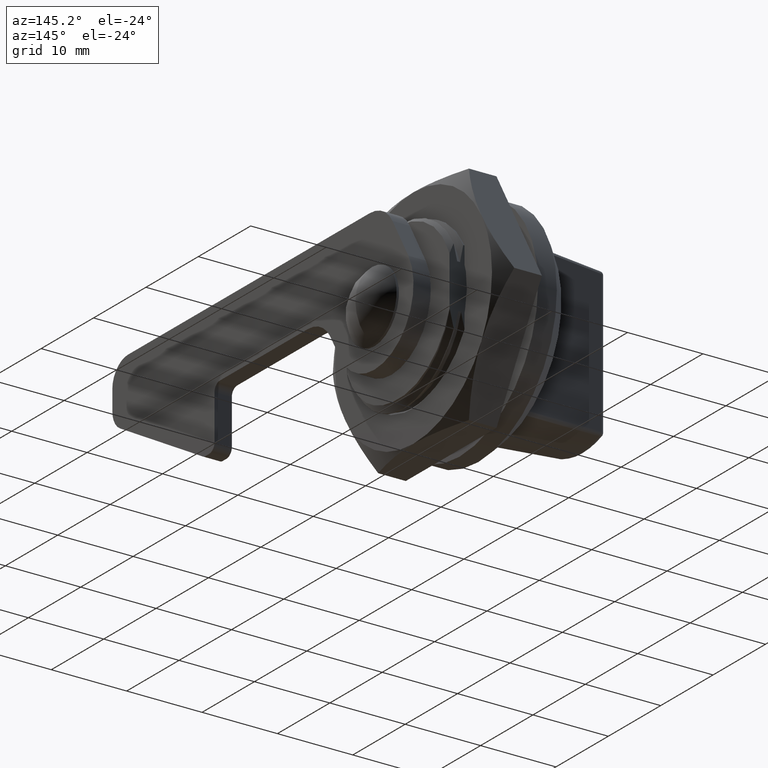
[diagram: clean part render]
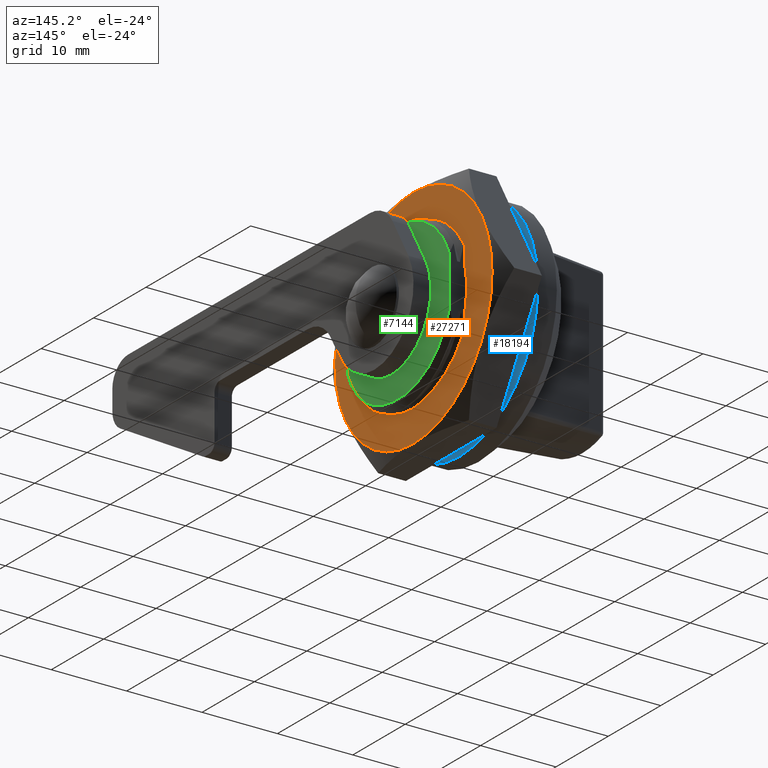
[diagram: same view with three faces highlighted in distinct colors, each labeled with its STEP entity id]
A machine part, auxiliary view with three faces highlighted in distinct colors.
Their STEP definitions:

[orange] entity #27271 — the highlighted planar face has unit normal (-1, 0, 0).
#228 = FACE_OUTER_BOUND ( 'NONE', #22420, .T. ) ;
#397 = CARTESIAN_POINT ( 'NONE',  ( -4.529724541998622700, -4.999999999999998200, 9.459822060423013200 ) ) ;
#491 = CARTESIAN_POINT ( 'NONE',  ( -10.67280194800956700, -5.000000000000003600, 2.071352330506805100 ) ) ;
#509 = VERTEX_POINT ( 'NONE', #19074 ) ;
#522 = B_SPLINE_CURVE_WITH_KNOTS ( 'NONE', 3,
 ( #5980, #8164, #27653, #14693 ),
 .UNSPECIFIED., .F., .F.,
 ( 4, 4 ),
 ( 1.054656235235956700E-016, 0.004421761626893663500 ),
 .UNSPECIFIED. ) ;
#833 = EDGE_CURVE ( 'NONE', #509, #15723, #15325, .T. ) ;
#1534 = CARTESIAN_POINT ( 'NONE',  ( 0.3204096086988811300, -5.000000000000000900, -10.72210813724865900 ) ) ;
#1558 = FACE_BOUND ( 'NONE', #14410, .T. ) ;
#1633 = CARTESIAN_POINT ( 'NONE',  ( 8.557856274789577000, -4.999999999999997300, -5.790185217756810900 ) ) ;
#2122 = VERTEX_POINT ( 'NONE', #7495 ) ;
#2286 = DIRECTION ( 'NONE',  ( -0.0000000000000000000, -1.000000000000000000, -0.0000000000000000000 ) ) ;
#2519 = DIRECTION ( 'NONE',  ( 0.0000000000000000000, 1.000000000000000000, 0.0000000000000000000 ) ) ;
#2590 = CARTESIAN_POINT ( 'NONE',  ( -5.687092063002585200, -5.000000000000000000, 8.876358354759073400 ) ) ;
#2679 = CARTESIAN_POINT ( 'NONE',  ( -10.89355189215758400, -5.000000000000007100, 0.7978947520152160900 ) ) ;
#2928 = VERTEX_POINT ( 'NONE', #24665 ) ;
#3335 = CARTESIAN_POINT ( 'NONE',  ( -9.765044891690349400E-014, -5.000000000000000000, 14.99999999984460100 ) ) ;
#3702 = CARTESIAN_POINT ( 'NONE',  ( 1.602656479458642600, -4.999999999999995600, -10.55869831165239800 ) ) ;
#3794 = CARTESIAN_POINT ( 'NONE',  ( 9.172787568695069300, -5.000000000000002700, -4.651824404657038100 ) ) ;
#4189 = CARTESIAN_POINT ( 'NONE',  ( 0.0000000000000000000, -5.000000000000000000, 0.0000000000000000000 ) ) ;
#4612 = CARTESIAN_POINT ( 'NONE',  ( -9.666904424037920100, -5.000000000000000000, -5.581189911867869400 ) ) ;
#4735 = CARTESIAN_POINT ( 'NONE',  ( -6.771746850444237100, -4.999999999999997300, 8.148317128610893100 ) ) ;
#4823 = CARTESIAN_POINT ( 'NONE',  ( -10.96284637270156100, -4.999999999999999100, -0.5017813460787102800 ) ) ;
#4858 = ORIENTED_EDGE ( 'NONE', *, *, #22361, .T. ) ;
#4974 = CARTESIAN_POINT ( 'NONE',  ( 0.0000000000000000000, -5.000000000000000000, 0.0000000000000000000 ) ) ;
#5040 = ORIENTED_EDGE ( 'NONE', *, *, #26734, .F. ) ;
#5286 = ORIENTED_EDGE ( 'NONE', *, *, #26043, .F. ) ;
#5344 = AXIS2_PLACEMENT_3D ( 'NONE', #9257, #24386, #11429 ) ;
#5605 = VERTEX_POINT ( 'NONE', #4612 ) ;
#5768 = CARTESIAN_POINT ( 'NONE',  ( -6.289393308947480500, -5.000000000000000000, -9.014394201248492800 ) ) ;
#5861 = CARTESIAN_POINT ( 'NONE',  ( 2.869312737065121700, -5.000000000000000000, -10.23438764983597900 ) ) ;
#5961 = CARTESIAN_POINT ( 'NONE',  ( 9.638937201804241200, -5.000000000000006200, -3.441095731973845800 ) ) ;
#5980 = CARTESIAN_POINT ( 'NONE',  ( -10.91372415477802000, -5.000000000000000000, -1.375000026695415900 ) ) ;
#6365 = DIRECTION ( 'NONE',  ( 8.881784197001252300E-016, 0.0000000000000000000, 1.000000000000000000 ) ) ;
#6618 = AXIS2_PLACEMENT_3D ( 'NONE', #4974, #20110, #7149 ) ;
#6701 = AXIS2_PLACEMENT_3D ( 'NONE', #22324, #9393, #24514 ) ;
#6822 = CARTESIAN_POINT ( 'NONE',  ( 0.9872765554697112700, -5.000000000000000900, 10.22112004195336800 ) ) ;
#6918 = CARTESIAN_POINT ( 'NONE',  ( -7.748317254809352400, -5.000000000000000000, 7.301043156370388600 ) ) ;
#7007 = CARTESIAN_POINT ( 'NONE',  ( -10.91372415477802000, -5.000000000000000000, -1.375000026695415900 ) ) ;
#7149 = DIRECTION ( 'NONE',  ( 0.0000000000000000000, 0.0000000000000000000, 1.000000000000000000 ) ) ;
#7372 = ORIENTED_EDGE ( 'NONE', *, *, #20225, .F. ) ;
#7389 = PLANE ( 'NONE',  #9029 ) ;
#7495 = CARTESIAN_POINT ( 'NONE',  ( 12.99038105663197800, -5.000000000000000000, 7.499999999922299500 ) ) ;
#7688 = CARTESIAN_POINT ( 'NONE',  ( -6.647646987011669700, -5.000000000000000000, -8.764062387729389100 ) ) ;
#7963 = CARTESIAN_POINT ( 'NONE',  ( -5.150565388679468400, -5.000000000000000900, -9.651778640270753900 ) ) ;
#8001 = EDGE_CURVE ( 'NONE', #18042, #26306, #13913, .T. ) ;
#8056 = CARTESIAN_POINT ( 'NONE',  ( 4.852672220566260500, -4.999999999999996400, -9.389442033987098300 ) ) ;
#8147 = CARTESIAN_POINT ( 'NONE',  ( 9.854779545596841200, -4.999999999995449900, -2.592184427791759800 ) ) ;
#8164 = CARTESIAN_POINT ( 'NONE',  ( -10.78667158833198800, -5.000000000000000000, -2.843706243014712000 ) ) ;
#8305 = AXIS2_PLACEMENT_3D ( 'NONE', #15232, #2286, #17393 ) ;
#8748 = EDGE_CURVE ( 'NONE', #26245, #26306, #14550, .T. ) ;
#9000 = CARTESIAN_POINT ( 'NONE',  ( -0.7491318615024874500, -4.999999999999996400, 10.33308777078296000 ) ) ;
#9001 = B_SPLINE_CURVE_WITH_KNOTS ( 'NONE', 3,
 ( #20716, #9853, #25071, #12123 ),
 .UNSPECIFIED., .F., .F.,
 ( 4, 4 ),
 ( 8.036095970540328500E-017, 0.004421758462768273800 ),
 .UNSPECIFIED. ) ;
#9029 = AXIS2_PLACEMENT_3D ( 'NONE', #22405, #22496, #9557 ) ;
#9096 = CARTESIAN_POINT ( 'NONE',  ( -8.619407604147705000, -5.000000000000000900, 6.333025607650469600 ) ) ;
#9257 = CARTESIAN_POINT ( 'NONE',  ( 0.0000000000000000000, -5.000000000000000000, 0.0000000000000000000 ) ) ;
#9343 = CARTESIAN_POINT ( 'NONE',  ( 0.0000000000000000000, -5.000000000000000000, 0.0000000000000000000 ) ) ;
#9351 = AXIS2_PLACEMENT_3D ( 'NONE', #4189, #19319, #6365 ) ;
#9393 = DIRECTION ( 'NONE',  ( 0.0000000000000000000, 1.000000000000000000, 0.0000000000000000000 ) ) ;
#9557 = DIRECTION ( 'NONE',  ( 0.0000000000000000000, 0.0000000000000000000, 1.000000000000000000 ) ) ;
#9853 = CARTESIAN_POINT ( 'NONE',  ( -8.887358922856515500, -5.000000000000000000, -6.832407374676039400 ) ) ;
#10133 = CARTESIAN_POINT ( 'NONE',  ( -3.538098540741268800, -4.999999999999999100, -10.30691911433999100 ) ) ;
#10223 = CARTESIAN_POINT ( 'NONE',  ( 6.275943887850023600, -4.999999999999999100, -8.380862123255395700 ) ) ;
#10696 = CARTESIAN_POINT ( 'NONE',  ( -10.91372415477802000, -5.000000000000000000, -1.375000026695415900 ) ) ;
#11169 = EDGE_CURVE ( 'NONE', #25881, #2928, #16821, .T. ) ;
#11174 = CARTESIAN_POINT ( 'NONE',  ( -2.887396043328178700, -4.999999999999998200, 10.00964325858394600 ) ) ;
#11261 = CARTESIAN_POINT ( 'NONE',  ( -9.805157073379851000, -5.000000000000001800, 4.524716647803884100 ) ) ;
#11429 = DIRECTION ( 'NONE',  ( 1.776356839400250500E-015, 0.0000000000000000000, 1.000000000000000000 ) ) ;
#11511 = DIRECTION ( 'NONE',  ( 0.0000000000000000000, 0.0000000000000000000, 1.000000000000000000 ) ) ;
#11880 = EDGE_CURVE ( 'NONE', #15723, #18220, #19171, .T. ) ;
#11934 = CIRCLE ( 'NONE', #9351, 14.99999999984458100 ) ;
#12123 = CARTESIAN_POINT ( 'NONE',  ( -6.647646987011669700, -5.000000000000000000, -8.764062387729389100 ) ) ;
#12308 = CARTESIAN_POINT ( 'NONE',  ( -1.414320372416033400, -4.999999999999995600, -10.69588938915782200 ) ) ;
#12404 = CARTESIAN_POINT ( 'NONE',  ( 7.226782964558676500, -4.999999999999993800, -7.503261956684021100 ) ) ;
#12444 = AXIS2_PLACEMENT_3D ( 'NONE', #15462, #2519, #17617 ) ;
#13258 = CARTESIAN_POINT ( 'NONE',  ( 2.682492182260685100, -5.000000000000000000, 9.830581655873318800 ) ) ;
#13349 = CARTESIAN_POINT ( 'NONE',  ( -4.130265647580450200, -5.000000000000000900, 9.621697935946748700 ) ) ;
#13443 = CARTESIAN_POINT ( 'NONE',  ( -10.44157008223177900, -5.000000000000004400, 2.905771480749146800 ) ) ;
#13913 = CIRCLE ( 'NONE', #6701, 10.19000000000000000 ) ;
#14410 = EDGE_LOOP ( 'NONE', ( #18117, #27147, #26183, #5286, #7372 ) ) ;
#14491 = CARTESIAN_POINT ( 'NONE',  ( -0.1102707083155850100, -4.999999999999989300, -10.74123442100537500 ) ) ;
#14550 = B_SPLINE_CURVE_WITH_KNOTS ( 'NONE', 3,
 ( #27355, #5768, #20914, #7963, #23068, #10133, #25265, #12308, #27436, #14491, #1534, #16661, #3702, #18837, #5861, #21000, #8056, #23162, #10223, #25355, #12404, #27536, #14578, #1633, #16757, #3794, #18928, #5961, #21096, #8147 ),
 .UNSPECIFIED., .F., .F.,
 ( 4, 2, 2, 2, 2, 2, 2, 2, 2, 2, 2, 2, 2, 2, 4 ),
 ( 5.434005713344057700E-017, 0.001305055688224699500, 0.002610111376449344400, 0.005220222752898635000, 0.006525278441123279200, 0.007830334129347924300, 0.009135389817572569400, 0.01044044550579721400, 0.01305055688224650300, 0.01435561257047115000, 0.01566066825869579300, 0.01696572394692043300, 0.01827077963514507600, 0.01957583532336971300, 0.02088089101159435300 ),
 .UNSPECIFIED. ) ;
#14578 = CARTESIAN_POINT ( 'NONE',  ( 8.067051736108254500, -4.999999999999999100, -6.509766569931755100 ) ) ;
#14693 = CARTESIAN_POINT ( 'NONE',  ( -9.666904424037920100, -5.000000000000000000, -5.581189911867869400 ) ) ;
#14717 = B_SPLINE_CURVE_WITH_KNOTS ( 'NONE', 3,
 ( #13258, #26219, #19779, #6822, #21948, #9000, #24126, #11174, #26311, #13349, #397, #15530, #2590, #17690, #4735, #19877, #6918, #22031, #9096, #24220, #11261, #26399, #13443, #491, #15615, #2679, #17780, #4823, #19970, #7007 ),
 .UNSPECIFIED., .F., .F.,
 ( 4, 2, 2, 2, 2, 2, 2, 2, 2, 2, 2, 2, 2, 2, 4 ),
 ( 4.596912361788801400E-005, 0.001350443569155663400, 0.002654918014693438800, 0.005263866905768990100, 0.006568341351306765900, 0.007872815796844541800, 0.009177290242382316700, 0.01048176468792009200, 0.01178623913345786700, 0.01309071357899564300, 0.01569966247007119000, 0.01700413691560896700, 0.01830861136114674300, 0.01961308580668451700, 0.02091756025222229000 ),
 .UNSPECIFIED. ) ;
#15232 = CARTESIAN_POINT ( 'NONE',  ( 0.0000000000000000000, -5.000000000000000000, 0.0000000000000000000 ) ) ;
#15325 = CIRCLE ( 'NONE', #5344, 14.99999999984458100 ) ;
#15462 = CARTESIAN_POINT ( 'NONE',  ( 0.0000000000000000000, -5.000000000000000000, 0.0000000000000000000 ) ) ;
#15530 = CARTESIAN_POINT ( 'NONE',  ( -5.307977201119404000, -4.999999999999998200, 9.087251415557743100 ) ) ;
#15615 = CARTESIAN_POINT ( 'NONE',  ( -10.76305664415665900, -5.000000000000006200, 1.649752460926788400 ) ) ;
#15723 = VERTEX_POINT ( 'NONE', #20902 ) ;
#16288 = CARTESIAN_POINT ( 'NONE',  ( 9.854779545596841200, -4.999999999995449900, -2.592184427791759800 ) ) ;
#16661 = CARTESIAN_POINT ( 'NONE',  ( 1.176857826528975700, -5.000000000000000000, -10.63067362096821700 ) ) ;
#16757 = CARTESIAN_POINT ( 'NONE',  ( 8.778916920157769300, -5.000000000000000000, -5.418554700547577600 ) ) ;
#16821 = CIRCLE ( 'NONE', #8305, 14.99999999984458100 ) ;
#17393 = DIRECTION ( 'NONE',  ( 0.0000000000000000000, 0.0000000000000000000, 1.000000000000000000 ) ) ;
#17407 = CIRCLE ( 'NONE', #6618, 14.99999999984458100 ) ;
#17617 = DIRECTION ( 'NONE',  ( 0.0000000000000000000, 0.0000000000000000000, 1.000000000000000000 ) ) ;
#17690 = CARTESIAN_POINT ( 'NONE',  ( -6.422518212492810200, -5.000000000000000000, 8.404591546600812500 ) ) ;
#17780 = CARTESIAN_POINT ( 'NONE',  ( -10.93379493164639600, -4.999999999999999100, 0.3676373433193436100 ) ) ;
#17781 = VERTEX_POINT ( 'NONE', #10696 ) ;
#17824 = ORIENTED_EDGE ( 'NONE', *, *, #19305, .T. ) ;
#18024 = EDGE_CURVE ( 'NONE', #18042, #17781, #14717, .T. ) ;
#18042 = VERTEX_POINT ( 'NONE', #26483 ) ;
#18117 = ORIENTED_EDGE ( 'NONE', *, *, #18024, .F. ) ;
#18220 = VERTEX_POINT ( 'NONE', #26579 ) ;
#18837 = CARTESIAN_POINT ( 'NONE',  ( 2.449263051062681400, -4.999999999999993800, -10.36071787088453400 ) ) ;
#18928 = CARTESIAN_POINT ( 'NONE',  ( 9.344957942948045800, -5.000000000000006200, -4.256413508494223800 ) ) ;
#19074 = CARTESIAN_POINT ( 'NONE',  ( -12.99038105663201900, -5.000000000000000000, -7.499999999922219600 ) ) ;
#19171 = CIRCLE ( 'NONE', #22781, 14.99999999984458100 ) ;
#19305 = EDGE_CURVE ( 'NONE', #2928, #509, #17407, .T. ) ;
#19319 = DIRECTION ( 'NONE',  ( -0.0000000000000000000, -1.000000000000000000, -0.0000000000000000000 ) ) ;
#19779 = CARTESIAN_POINT ( 'NONE',  ( 1.843587548614458800, -5.000000000000000900, 10.06724437853415400 ) ) ;
#19877 = CARTESIAN_POINT ( 'NONE',  ( -7.434648564287187800, -4.999999999999996400, 7.596545352344830500 ) ) ;
#19970 = CARTESIAN_POINT ( 'NONE',  ( -10.95137420624734800, -4.999999999999998200, -0.9397717886165578600 ) ) ;
#20110 = DIRECTION ( 'NONE',  ( -0.0000000000000000000, -1.000000000000000000, -0.0000000000000000000 ) ) ;
#20225 = EDGE_CURVE ( 'NONE', #17781, #5605, #522, .T. ) ;
#20716 = CARTESIAN_POINT ( 'NONE',  ( -9.666904424037920100, -5.000000000000000000, -5.581189911867869400 ) ) ;
#20765 = ORIENTED_EDGE ( 'NONE', *, *, #11169, .T. ) ;
#20902 = CARTESIAN_POINT ( 'NONE',  ( 0.0000000000000000000, -5.000000000000000000, -14.99999999984460100 ) ) ;
#20914 = CARTESIAN_POINT ( 'NONE',  ( -5.918259123207601400, -5.000000000000000900, -9.241884770765413000 ) ) ;
#21000 = CARTESIAN_POINT ( 'NONE',  ( 4.086199617792537700, -4.999999999999999100, -9.784762768436820600 ) ) ;
#21096 = CARTESIAN_POINT ( 'NONE',  ( 9.760954598865389200, -5.000000000000002700, -3.019498928660155500 ) ) ;
#21948 = CARTESIAN_POINT ( 'NONE',  ( 0.5509005036531096100, -4.999999999999996400, 10.27053448166372400 ) ) ;
#22031 = CARTESIAN_POINT ( 'NONE',  ( -8.339841270712954100, -4.999999999999997300, 6.670531429958162000 ) ) ;
#22324 = CARTESIAN_POINT ( 'NONE',  ( 0.0000000000000000000, -4.999999999995449900, 0.0000000000000000000 ) ) ;
#22361 = EDGE_CURVE ( 'NONE', #18220, #2122, #11934, .T. ) ;
#22405 = CARTESIAN_POINT ( 'NONE',  ( 0.0000000000000000000, -5.000000000000000000, 0.0000000000000000000 ) ) ;
#22420 = EDGE_LOOP ( 'NONE', ( #5040, #20765, #17824, #24189, #24596, #4858 ) ) ;
#22496 = DIRECTION ( 'NONE',  ( 0.0000000000000000000, 1.000000000000000000, 0.0000000000000000000 ) ) ;
#22781 = AXIS2_PLACEMENT_3D ( 'NONE', #9343, #24468, #11511 ) ;
#23068 = CARTESIAN_POINT ( 'NONE',  ( -4.751847506375965800, -4.999999999999999100, -9.834890410719964400 ) ) ;
#23162 = CARTESIAN_POINT ( 'NONE',  ( 5.933202804801651600, -4.999999999999998200, -8.648836026409112400 ) ) ;
#24126 = CARTESIAN_POINT ( 'NONE',  ( -1.608695768567571300, -4.999999999999999100, 10.26771121295459100 ) ) ;
#24189 = ORIENTED_EDGE ( 'NONE', *, *, #833, .T. ) ;
#24220 = CARTESIAN_POINT ( 'NONE',  ( -9.387070100990213100, -5.000000000000001800, 5.278776332791164100 ) ) ;
#24386 = DIRECTION ( 'NONE',  ( -0.0000000000000000000, -1.000000000000000000, -0.0000000000000000000 ) ) ;
#24468 = DIRECTION ( 'NONE',  ( -0.0000000000000000000, -1.000000000000000000, -0.0000000000000000000 ) ) ;
#24514 = DIRECTION ( 'NONE',  ( 0.0000000000000000000, 0.0000000000000000000, 1.000000000000000000 ) ) ;
#24596 = ORIENTED_EDGE ( 'NONE', *, *, #11880, .T. ) ;
#24665 = CARTESIAN_POINT ( 'NONE',  ( -12.99038105663200000, -5.000000000000000000, 7.499999999922290600 ) ) ;
#25071 = CARTESIAN_POINT ( 'NONE',  ( -7.856057407233602200, -5.000000000000000000, -7.919678671687544900 ) ) ;
#25265 = CARTESIAN_POINT ( 'NONE',  ( -2.703687009923020600, -4.999999999999996400, -10.52205155327999900 ) ) ;
#25355 = CARTESIAN_POINT ( 'NONE',  ( 6.922260182655265700, -4.999999999999999100, -7.808401426838557300 ) ) ;
#25881 = VERTEX_POINT ( 'NONE', #3335 ) ;
#26043 = EDGE_CURVE ( 'NONE', #5605, #26245, #9001, .T. ) ;
#26183 = ORIENTED_EDGE ( 'NONE', *, *, #8748, .F. ) ;
#26219 = CARTESIAN_POINT ( 'NONE',  ( 2.265968095758975400, -4.999999999999999100, 9.962840086623973700 ) ) ;
#26245 = VERTEX_POINT ( 'NONE', #7688 ) ;
#26306 = VERTEX_POINT ( 'NONE', #16288 ) ;
#26311 = CARTESIAN_POINT ( 'NONE',  ( -3.310564338449126300, -5.000000000000002700, 9.896351109613478400 ) ) ;
#26399 = CARTESIAN_POINT ( 'NONE',  ( -10.29941504282285100, -5.000000000000000900, 3.320974963856185600 ) ) ;
#26483 = CARTESIAN_POINT ( 'NONE',  ( 2.682492182260685100, -5.000000000000000000, 9.830581655873318800 ) ) ;
#26579 = CARTESIAN_POINT ( 'NONE',  ( 12.99038105663201900, -5.000000000000000000, -7.499999999922209800 ) ) ;
#26625 = CIRCLE ( 'NONE', #12444, 14.99999999984460100 ) ;
#26734 = EDGE_CURVE ( 'NONE', #25881, #2122, #26625, .T. ) ;
#27147 = ORIENTED_EDGE ( 'NONE', *, *, #8001, .T. ) ;
#27271 = ADVANCED_FACE ( 'NONE', ( #228, #1558 ), #7389, .F. ) ;
#27355 = CARTESIAN_POINT ( 'NONE',  ( -6.647646987011669700, -5.000000000000000000, -8.764062387729389100 ) ) ;
#27436 = CARTESIAN_POINT ( 'NONE',  ( -0.9763425491826662700, -4.999999999999987600, -10.72848333765721000 ) ) ;
#27536 = CARTESIAN_POINT ( 'NONE',  ( 7.798446571042400200, -4.999999999999993800, -6.855051912225538200 ) ) ;
#27653 = CARTESIAN_POINT ( 'NONE',  ( -10.36071793622376100, -5.000000000000000000, -4.280474703494713000 ) ) ;

[blue] entity #18194 — the highlighted planar face has unit normal (1, 0, 0).
#305 = CARTESIAN_POINT ( 'NONE',  ( 4.499999999999884500, 0.0000000000000000000, 0.0000000000000000000 ) ) ;
#661 = AXIS2_PLACEMENT_3D ( 'NONE', #11210, #26350, #13391 ) ;
#670 = DIRECTION ( 'NONE',  ( 0.0000000000000000000, 0.0000000000000000000, -1.000000000000000000 ) ) ;
#777 = CARTESIAN_POINT ( 'NONE',  ( 4.499999999999892500, 3.961555485014918200, 9.796348959050423100 ) ) ;
#834 = VERTEX_POINT ( 'NONE', #20038 ) ;
#868 = CARTESIAN_POINT ( 'NONE',  ( 4.500000000007279500, 9.750000000000000000, 4.784718670937349900 ) ) ;
#1195 = VERTEX_POINT ( 'NONE', #20387 ) ;
#1270 = CIRCLE ( 'NONE', #2732, 10.18799999999999900 ) ;
#1345 = AXIS2_PLACEMENT_3D ( 'NONE', #305, #13616, #670 ) ;
#1357 = B_SPLINE_CURVE_WITH_KNOTS ( 'NONE', 3,
 ( #1735, #23364, #10435, #25557, #12605, #27740, #14786, #1836, #16959, #3997, #19124, #6161, #21300, #8352, #23461, #10523, #25657, #12699, #27833, #14879, #1937, #17055, #4084, #19222, #6267, #21392, #8450, #23568 ),
 .UNSPECIFIED., .F., .F.,
 ( 4, 2, 2, 2, 2, 2, 2, 2, 2, 2, 2, 2, 2, 4 ),
 ( 4.465220011294948300E-016, 0.001309852335251322400, 0.002619704670502196800, 0.005239409341003946000, 0.006549261676254819300, 0.007859114011505692600, 0.009168966346756568500, 0.01047881868200744400, 0.01309852335250919600, 0.01571822802301095200, 0.01702808035826182400, 0.01833793269351269600, 0.01964778502876356900, 0.02095763736401444500 ),
 .UNSPECIFIED. ) ;
#1735 = CARTESIAN_POINT ( 'NONE',  ( 4.499999999999894300, 8.680732118562771000, -6.756100198030179800 ) ) ;
#1836 = CARTESIAN_POINT ( 'NONE',  ( 4.499999999999891600, 4.109525700276959600, -9.987725040434842300 ) ) ;
#1937 = CARTESIAN_POINT ( 'NONE',  ( 4.499999999999891600, -6.167839787955616200, -8.343390756287661200 ) ) ;
#2169 = DIRECTION ( 'NONE',  ( 0.0000000000000000000, 0.0000000000000000000, -1.000000000000000000 ) ) ;
#2631 = ORIENTED_EDGE ( 'NONE', *, *, #22048, .F. ) ;
#2732 = AXIS2_PLACEMENT_3D ( 'NONE', #15715, #2769, #17884 ) ;
#2769 = DIRECTION ( 'NONE',  ( -1.000000000000000000, 0.0000000000000000000, 0.0000000000000000000 ) ) ;
#2861 = VERTEX_POINT ( 'NONE', #26750 ) ;
#2964 = CARTESIAN_POINT ( 'NONE',  ( 4.499999999999897000, 4.945995908677231200, 9.382741679684624400 ) ) ;
#3222 = DIRECTION ( 'NONE',  ( -1.000000000000000000, 0.0000000000000000000, 0.0000000000000000000 ) ) ;
#3651 = EDGE_CURVE ( 'NONE', #19827, #834, #10239, .T. ) ;
#3997 = CARTESIAN_POINT ( 'NONE',  ( 4.499999999999893400, 2.854544362428820500, -10.36442339495922800 ) ) ;
#4084 = CARTESIAN_POINT ( 'NONE',  ( 4.499999999999893400, -7.134227981602077900, -7.462529002341335100 ) ) ;
#4475 = CARTESIAN_POINT ( 'NONE',  ( 4.499999999999894300, -4.954724057564140700, 8.902025247852030500 ) ) ;
#4599 = ORIENTED_EDGE ( 'NONE', *, *, #10229, .T. ) ;
#4894 = FACE_BOUND ( 'NONE', #5857, .T. ) ;
#5029 = CARTESIAN_POINT ( 'NONE',  ( 4.499999999999889900, -2.340148781256364200, 10.05653861871135600 ) ) ;
#5111 = CARTESIAN_POINT ( 'NONE',  ( 4.499999999999877400, 5.878484213599550800, 8.873900084461467900 ) ) ;
#5464 = CARTESIAN_POINT ( 'NONE',  ( 4.499999999999884500, -9.750000000000000000, -11.39901311517800100 ) ) ;
#5857 = EDGE_LOOP ( 'NONE', ( #18065, #8685, #7108, #21193, #7883, #4599, #18674 ) ) ;
#6161 = CARTESIAN_POINT ( 'NONE',  ( 4.499999999999887200, 1.575950035344837900, -10.58233596821344600 ) ) ;
#6267 = CARTESIAN_POINT ( 'NONE',  ( 4.499999999999891600, -7.974196775119353700, -6.473452289030955600 ) ) ;
#7108 = ORIENTED_EDGE ( 'NONE', *, *, #3651, .F. ) ;
#7118 = CARTESIAN_POINT ( 'NONE',  ( 4.499999999999894300, -4.954724057564140700, 8.902025247852030500 ) ) ;
#7126 = CARTESIAN_POINT ( 'NONE',  ( 4.499999999999884500, 9.750000000000000000, -11.39901311517800100 ) ) ;
#7206 = VERTEX_POINT ( 'NONE', #23571 ) ;
#7208 = CARTESIAN_POINT ( 'NONE',  ( 4.499999999999893400, -0.5969526954591044500, 10.36254656329514700 ) ) ;
#7301 = CARTESIAN_POINT ( 'NONE',  ( 4.499999999999892500, 6.761997540852647100, 8.272098816481001600 ) ) ;
#7551 = AXIS2_PLACEMENT_3D ( 'NONE', #16175, #3222, #18339 ) ;
#7561 = VERTEX_POINT ( 'NONE', #4475 ) ;
#7654 = DIRECTION ( 'NONE',  ( 0.0000000000000000000, 0.0000000000000000000, 1.000000000000000000 ) ) ;
#7791 = CARTESIAN_POINT ( 'NONE',  ( 4.499999999999894300, 8.680732118562771000, -6.756100198030179800 ) ) ;
#7883 = ORIENTED_EDGE ( 'NONE', *, *, #9903, .T. ) ;
#8352 = CARTESIAN_POINT ( 'NONE',  ( 4.499999999999892500, 0.2714307250845591200, -10.64300429828133000 ) ) ;
#8450 = CARTESIAN_POINT ( 'NONE',  ( 4.499999999999895200, -8.688039041590782200, -5.374576571644092300 ) ) ;
#8596 = CARTESIAN_POINT ( 'NONE',  ( 4.499999999999840100, 0.0000000000000000000, 0.0000000000000000000 ) ) ;
#8685 = ORIENTED_EDGE ( 'NONE', *, *, #21597, .F. ) ;
#8945 = VERTEX_POINT ( 'NONE', #23447 ) ;
#9390 = CARTESIAN_POINT ( 'NONE',  ( 4.499999999999892500, 0.4721448765926090100, 10.41365883758212800 ) ) ;
#9476 = CARTESIAN_POINT ( 'NONE',  ( 4.499999999999895200, 8.100453150038463300, 7.098318654524365300 ) ) ;
#9903 = EDGE_CURVE ( 'NONE', #25101, #2861, #1270, .T. ) ;
#10053 = LINE ( 'NONE', #5464, #20875 ) ;
#10079 = VERTEX_POINT ( 'NONE', #24403 ) ;
#10229 = EDGE_CURVE ( 'NONE', #2861, #10079, #10053, .T. ) ;
#10239 = CIRCLE ( 'NONE', #15372, 11.00000000000319900 ) ;
#10251 = VECTOR ( 'NONE', #22246, 1000.000000000000000 ) ;
#10435 = CARTESIAN_POINT ( 'NONE',  ( 4.499999999999893400, 8.097093971413613600, -7.408178467541177700 ) ) ;
#10523 = CARTESIAN_POINT ( 'NONE',  ( 4.499999999999893400, -1.464325470735440500, -10.50049258379318900 ) ) ;
#10778 = DIRECTION ( 'NONE',  ( 0.0000000000000000000, 0.0000000000000000000, -1.000000000000000000 ) ) ;
#10952 = LINE ( 'NONE', #7126, #10251 ) ;
#11210 = CARTESIAN_POINT ( 'NONE',  ( 4.499999999999840100, 0.0000000000000000000, 0.0000000000000000000 ) ) ;
#11551 = CARTESIAN_POINT ( 'NONE',  ( 4.499999999999892500, 1.895208791477005900, 10.32861095472894800 ) ) ;
#11644 = CARTESIAN_POINT ( 'NONE',  ( 4.499999999999893400, 8.993904353933889000, 5.996485873000407800 ) ) ;
#11905 = CIRCLE ( 'NONE', #19886, 15.00000000000000000 ) ;
#12605 = CARTESIAN_POINT ( 'NONE',  ( 4.499999999999894300, 7.120094027006912200, -8.285783419002593000 ) ) ;
#12671 = ORIENTED_EDGE ( 'NONE', *, *, #24571, .F. ) ;
#12699 = CARTESIAN_POINT ( 'NONE',  ( 4.499999999999893400, -3.961943102239120500, -9.723016321020423900 ) ) ;
#13002 = B_SPLINE_CURVE_WITH_KNOTS ( 'NONE', 3,
 ( #7118, #19992, #17978, #5029, #20158, #7208, #22321, #9390, #24512, #11551, #26694, #13733, #777, #15908, #2964, #18076, #5111, #20254, #7301, #22411, #9476, #24606, #11644, #26777, #13825, #868 ),
 .UNSPECIFIED., .F., .F.,
 ( 4, 2, 2, 2, 2, 2, 2, 2, 2, 2, 2, 2, 4 ),
 ( 1.924214207952030700E-016, 0.002143297280593170000, 0.004286594561186147400, 0.005358243201482634800, 0.006429891841779122200, 0.008573189122372098700, 0.009644837762668584400, 0.01071648640296507200, 0.01178813504326155700, 0.01285978368355804500, 0.01500308096415102800, 0.01607472960444751600, 0.01714637824474400700 ),
 .UNSPECIFIED. ) ;
#13391 = DIRECTION ( 'NONE',  ( 0.0000000000000000000, 0.0000000000000000000, -1.000000000000000000 ) ) ;
#13616 = DIRECTION ( 'NONE',  ( 1.000000000000000000, 0.0000000000000000000, 0.0000000000000000000 ) ) ;
#13706 = EDGE_LOOP ( 'NONE', ( #12671, #2631 ) ) ;
#13733 = CARTESIAN_POINT ( 'NONE',  ( 4.499999999999898700, 3.620308976941920300, 9.912833224091459200 ) ) ;
#13825 = CARTESIAN_POINT ( 'NONE',  ( 4.499999999999894300, 9.581001243385699700, 5.097053555273810800 ) ) ;
#14424 = EDGE_CURVE ( 'NONE', #7561, #1195, #13002, .T. ) ;
#14786 = CARTESIAN_POINT ( 'NONE',  ( 4.499999999999891600, 5.314918006423081200, -9.486272667716283600 ) ) ;
#14879 = CARTESIAN_POINT ( 'NONE',  ( 4.499999999999897000, -5.818733518513819400, -8.610408834768684000 ) ) ;
#15111 = DIRECTION ( 'NONE',  ( 1.000000000000000000, 0.0000000000000000000, 0.0000000000000000000 ) ) ;
#15372 = AXIS2_PLACEMENT_3D ( 'NONE', #28072, #15111, #2169 ) ;
#15600 = CARTESIAN_POINT ( 'NONE',  ( 4.499999999999894300, -8.886350929476238400, -4.982781468035340400 ) ) ;
#15715 = CARTESIAN_POINT ( 'NONE',  ( 4.499999999999894300, 1.232595164407829900E-032, 0.0000000000000000000 ) ) ;
#15908 = CARTESIAN_POINT ( 'NONE',  ( 4.499999999999893400, 4.623733725662752600, 9.531397979130963100 ) ) ;
#16175 = CARTESIAN_POINT ( 'NONE',  ( 4.499999999999894300, 1.232595164407829900E-032, 0.0000000000000000000 ) ) ;
#16387 = FACE_OUTER_BOUND ( 'NONE', #13706, .T. ) ;
#16779 = CIRCLE ( 'NONE', #7551, 10.18799999999999900 ) ;
#16959 = CARTESIAN_POINT ( 'NONE',  ( 4.499999999999891600, 3.692527196701656000, -10.13172604735848900 ) ) ;
#17055 = CARTESIAN_POINT ( 'NONE',  ( 4.499999999999892500, -6.826437190562316500, -7.768423429099615700 ) ) ;
#17884 = DIRECTION ( 'NONE',  ( 0.0000000000000000000, 0.0000000000000000000, 1.000000000000000000 ) ) ;
#17978 = CARTESIAN_POINT ( 'NONE',  ( 4.499999999999890800, -3.694160979393768000, 9.579985806719928800 ) ) ;
#18065 = ORIENTED_EDGE ( 'NONE', *, *, #14424, .T. ) ;
#18076 = CARTESIAN_POINT ( 'NONE',  ( 4.499999999999897900, 5.573233691246819900, 9.053740749512600800 ) ) ;
#18194 = ADVANCED_FACE ( 'NONE', ( #4894, #16387 ), #22209, .T. ) ;
#18339 = DIRECTION ( 'NONE',  ( 0.0000000000000000000, 0.0000000000000000000, 1.000000000000000000 ) ) ;
#18366 = CIRCLE ( 'NONE', #661, 15.00000000000000000 ) ;
#18674 = ORIENTED_EDGE ( 'NONE', *, *, #27386, .T. ) ;
#19124 = CARTESIAN_POINT ( 'NONE',  ( 4.499999999999887200, 2.431199808925032600, -10.45436874849906400 ) ) ;
#19222 = CARTESIAN_POINT ( 'NONE',  ( 4.499999999999893400, -7.708108895073329400, -6.815044392047567200 ) ) ;
#19827 = VERTEX_POINT ( 'NONE', #7791 ) ;
#19886 = AXIS2_PLACEMENT_3D ( 'NONE', #8596, #23716, #10778 ) ;
#19992 = CARTESIAN_POINT ( 'NONE',  ( 4.499999999999894300, -4.340631109526459100, 9.274320703001038200 ) ) ;
#20038 = CARTESIAN_POINT ( 'NONE',  ( 4.499999999999840100, 9.749999999999888100, -5.092887196872950100 ) ) ;
#20158 = CARTESIAN_POINT ( 'NONE',  ( 4.499999999999893400, -1.650290082191825400, 10.22135174416117900 ) ) ;
#20254 = CARTESIAN_POINT ( 'NONE',  ( 4.499999999999877400, 6.472283793948848900, 8.483603014898587700 ) ) ;
#20387 = CARTESIAN_POINT ( 'NONE',  ( 4.500000000007279500, 9.750000000000000000, 4.784718670937349900 ) ) ;
#20875 = VECTOR ( 'NONE', #7654, 1000.000000000000000 ) ;
#21193 = ORIENTED_EDGE ( 'NONE', *, *, #22348, .T. ) ;
#21300 = CARTESIAN_POINT ( 'NONE',  ( 4.499999999999891600, 1.144045181135704600, -10.62036005350283200 ) ) ;
#21392 = CARTESIAN_POINT ( 'NONE',  ( 4.499999999999892500, -8.463909476168087300, -5.753919720293257700 ) ) ;
#21597 = EDGE_CURVE ( 'NONE', #834, #1195, #10952, .T. ) ;
#22048 = EDGE_CURVE ( 'NONE', #7206, #8945, #18366, .T. ) ;
#22209 = PLANE ( 'NONE',  #1345 ) ;
#22246 = DIRECTION ( 'NONE',  ( 0.0000000000000000000, 1.224646799147352000E-016, 1.000000000000000000 ) ) ;
#22321 = CARTESIAN_POINT ( 'NONE',  ( 4.499999999999892500, -0.2427238818471159900, 10.39179896742045800 ) ) ;
#22348 = EDGE_CURVE ( 'NONE', #19827, #25101, #1357, .T. ) ;
#22411 = CARTESIAN_POINT ( 'NONE',  ( 4.499999999999893400, 7.596476844643770000, 7.596667580117381700 ) ) ;
#23364 = CARTESIAN_POINT ( 'NONE',  ( 4.499999999999895200, 8.398058245711711200, -7.091476116323168100 ) ) ;
#23447 = CARTESIAN_POINT ( 'NONE',  ( 4.499999999999840100, 0.0000000000000000000, 15.00000000000000000 ) ) ;
#23461 = CARTESIAN_POINT ( 'NONE',  ( 4.499999999999891600, -0.1683419008549823000, -10.62713541215555100 ) ) ;
#23568 = CARTESIAN_POINT ( 'NONE',  ( 4.499999999999894300, -8.886350929476238400, -4.982781468035340400 ) ) ;
#23571 = CARTESIAN_POINT ( 'NONE',  ( 4.499999999999840100, 1.836970198721029600E-015, -15.00000000000000000 ) ) ;
#23716 = DIRECTION ( 'NONE',  ( -1.000000000000000000, -0.0000000000000000000, -0.0000000000000000000 ) ) ;
#24403 = CARTESIAN_POINT ( 'NONE',  ( 4.499999999999884500, -9.750000000000000000, 2.955138575430900100 ) ) ;
#24512 = CARTESIAN_POINT ( 'NONE',  ( 4.499999999999893400, 0.8316403828263659900, 10.40598752815397400 ) ) ;
#24571 = EDGE_CURVE ( 'NONE', #8945, #7206, #11905, .T. ) ;
#24606 = CARTESIAN_POINT ( 'NONE',  ( 4.499999999999897000, 8.780144984994521500, 6.280761917745354400 ) ) ;
#25101 = VERTEX_POINT ( 'NONE', #15600 ) ;
#25557 = CARTESIAN_POINT ( 'NONE',  ( 4.499999999999893400, 7.459055611904386900, -8.004716894617779100 ) ) ;
#25657 = CARTESIAN_POINT ( 'NONE',  ( 4.499999999999893400, -2.309678516230965900, -10.31252542401783900 ) ) ;
#26350 = DIRECTION ( 'NONE',  ( -1.000000000000000000, -0.0000000000000000000, -0.0000000000000000000 ) ) ;
#26694 = CARTESIAN_POINT ( 'NONE',  ( 4.499999999999899600, 2.592404602052086100, 10.20549539688285100 ) ) ;
#26750 = CARTESIAN_POINT ( 'NONE',  ( 4.499999999999840100, -9.750000000000000000, -2.955138575430900100 ) ) ;
#26777 = CARTESIAN_POINT ( 'NONE',  ( 4.499999999999893400, 9.395052720261059400, 5.403720568570767200 ) ) ;
#27386 = EDGE_CURVE ( 'NONE', #10079, #7561, #16779, .T. ) ;
#27740 = CARTESIAN_POINT ( 'NONE',  ( 4.499999999999894300, 6.066540898520300700, -9.058963346435456600 ) ) ;
#27833 = CARTESIAN_POINT ( 'NONE',  ( 4.499999999999896100, -4.736972455272002900, -9.333452357715359000 ) ) ;
#28072 = CARTESIAN_POINT ( 'NONE',  ( 4.499999999999840100, 0.0000000000000000000, 0.0000000000000000000 ) ) ;

[green] entity #7144 — the highlighted planar face has unit normal (-1, 0, 0).
#322 = CARTESIAN_POINT ( 'NONE',  ( 12.59999999999193900, -9.750000000000000000, -3.619046835735760100 ) ) ;
#685 = EDGE_CURVE ( 'NONE', #16087, #18836, #27942, .T. ) ;
#960 = ORIENTED_EDGE ( 'NONE', *, *, #685, .T. ) ;
#1125 = EDGE_CURVE ( 'NONE', #18836, #12672, #20362, .T. ) ;
#1549 = AXIS2_PLACEMENT_3D ( 'NONE', #8651, #23768, #10829 ) ;
#2489 = EDGE_CURVE ( 'NONE', #10249, #16158, #27178, .T. ) ;
#2495 = DIRECTION ( 'NONE',  ( -1.000000000000000000, 0.0000000000000000000, 0.0000000000000000000 ) ) ;
#2788 = FACE_OUTER_BOUND ( 'NONE', #24845, .T. ) ;
#3001 = EDGE_CURVE ( 'NONE', #24192, #4914, #13649, .T. ) ;
#3957 = LINE ( 'NONE', #18913, #14117 ) ;
#4062 = CARTESIAN_POINT ( 'NONE',  ( 12.60000000000092000, 9.577738289398990200, 4.053014835754114900 ) ) ;
#4152 = CIRCLE ( 'NONE', #1549, 4.406329113932784500 ) ;
#4324 = AXIS2_PLACEMENT_3D ( 'NONE', #16962, #6165, #21304 ) ;
#4608 = EDGE_LOOP ( 'NONE', ( #25169, #20175 ) ) ;
#4724 = CARTESIAN_POINT ( 'NONE',  ( 12.59999999999982600, -5.458532458085408700, -8.857990100143274100 ) ) ;
#4914 = VERTEX_POINT ( 'NONE', #9255 ) ;
#6165 = DIRECTION ( 'NONE',  ( -1.000000000000000000, 0.0000000000000000000, 0.0000000000000000000 ) ) ;
#6241 = DIRECTION ( 'NONE',  ( -1.000000000000000000, 0.0000000000000000000, 0.0000000000000000000 ) ) ;
#6905 = CARTESIAN_POINT ( 'NONE',  ( 12.59999999999982000, -6.204481402232329600, -8.346520863715509700 ) ) ;
#6914 = VECTOR ( 'NONE', #14412, 1000.000000000000000 ) ;
#7144 = ADVANCED_FACE ( 'NONE', ( #2788, #23735 ), #12610, .F. ) ;
#7182 = AXIS2_PLACEMENT_3D ( 'NONE', #19204, #6241, #21371 ) ;
#7570 = LINE ( 'NONE', #12231, #6914 ) ;
#7976 = ORIENTED_EDGE ( 'NONE', *, *, #20018, .F. ) ;
#8100 = ORIENTED_EDGE ( 'NONE', *, *, #24574, .T. ) ;
#8174 = ORIENTED_EDGE ( 'NONE', *, *, #18022, .F. ) ;
#8323 = CIRCLE ( 'NONE', #20714, 10.39999999995602100 ) ;
#8651 = CARTESIAN_POINT ( 'NONE',  ( 12.59999999999193900, 0.0000000000000000000, 0.0000000000000000000 ) ) ;
#8702 = CARTESIAN_POINT ( 'NONE',  ( 12.59999999999982400, 9.639325871700474800, 3.888907513911438000 ) ) ;
#9086 = CARTESIAN_POINT ( 'NONE',  ( 12.59999999999982600, -2.944835784691723000, -9.841869956070828700 ) ) ;
#9255 = CARTESIAN_POINT ( 'NONE',  ( 12.59999999999193900, 0.0000000000000000000, 4.406329113932784500 ) ) ;
#9386 = VERTEX_POINT ( 'NONE', #322 ) ;
#9614 = CARTESIAN_POINT ( 'NONE',  ( 12.59999999999982000, 1.232595164407829900E-032, 0.0000000000000000000 ) ) ;
#9619 = DIRECTION ( 'NONE',  ( -1.000000000000000000, 0.0000000000000000000, 0.0000000000000000000 ) ) ;
#9827 = CARTESIAN_POINT ( 'NONE',  ( 12.59999999999982000, 0.0000000000000000000, 10.39999999995602000 ) ) ;
#10249 = VERTEX_POINT ( 'NONE', #9827 ) ;
#10707 = ORIENTED_EDGE ( 'NONE', *, *, #2489, .F. ) ;
#10829 = DIRECTION ( 'NONE',  ( 0.0000000000000000000, 0.0000000000000000000, 1.000000000000000000 ) ) ;
#11248 = CARTESIAN_POINT ( 'NONE',  ( 12.59999999999982200, -1.611635176452784300, -10.08938347676144400 ) ) ;
#11788 = DIRECTION ( 'NONE',  ( 0.0000000000000000000, 1.776356839400250500E-015, 1.000000000000000000 ) ) ;
#12137 = VERTEX_POINT ( 'NONE', #22640 ) ;
#12231 = CARTESIAN_POINT ( 'NONE',  ( 12.59999999999193900, 9.750000000000000000, -11.39901311517800100 ) ) ;
#12344 = CARTESIAN_POINT ( 'NONE',  ( 12.59999999999982000, 0.0000000000000000000, 0.0000000000000000000 ) ) ;
#12602 = AXIS2_PLACEMENT_3D ( 'NONE', #9614, #24742, #11788 ) ;
#12610 = PLANE ( 'NONE',  #4324 ) ;
#12672 = VERTEX_POINT ( 'NONE', #25479 ) ;
#13378 = AXIS2_PLACEMENT_3D ( 'NONE', #12344, #27473, #14524 ) ;
#13649 = CIRCLE ( 'NONE', #21689, 4.406329113932784500 ) ;
#14117 = VECTOR ( 'NONE', #23245, 1000.000000000000000 ) ;
#14412 = DIRECTION ( 'NONE',  ( -0.0000000000000000000, -1.224646799147352000E-016, -1.000000000000000000 ) ) ;
#14524 = DIRECTION ( 'NONE',  ( 0.0000000000000000000, 0.0000000000000000000, 1.000000000000000000 ) ) ;
#14647 = ORIENTED_EDGE ( 'NONE', *, *, #27638, .F. ) ;
#15130 = CARTESIAN_POINT ( 'NONE',  ( 12.59999999999982000, -1.158075942438400000, -10.12196641525474000 ) ) ;
#15364 = EDGE_CURVE ( 'NONE', #9386, #12137, #3957, .T. ) ;
#15439 = CARTESIAN_POINT ( 'NONE',  ( 12.59999999999982000, 0.0000000000000000000, 0.0000000000000000000 ) ) ;
#16087 = VERTEX_POINT ( 'NONE', #27805 ) ;
#16158 = VERTEX_POINT ( 'NONE', #4062 ) ;
#16962 = CARTESIAN_POINT ( 'NONE',  ( 12.59999999999982000, 0.0000000000000000000, 0.0000000000000000000 ) ) ;
#17205 = CARTESIAN_POINT ( 'NONE',  ( 12.59999999999982000, 9.750000000000000000, 3.556351598496865200 ) ) ;
#17597 = DIRECTION ( 'NONE',  ( 0.0000000000000000000, 0.0000000000000000000, 1.000000000000000000 ) ) ;
#18022 = EDGE_CURVE ( 'NONE', #16087, #9386, #8323, .T. ) ;
#18166 = B_SPLINE_CURVE_WITH_KNOTS ( 'NONE', 3,
 ( #17205, #25908, #8702, #23817 ),
 .UNSPECIFIED., .F., .F.,
 ( 4, 4 ),
 ( 0.0007481350941648928200, 0.001273823620336728900 ),
 .UNSPECIFIED. ) ;
#18836 = VERTEX_POINT ( 'NONE', #15130 ) ;
#18913 = CARTESIAN_POINT ( 'NONE',  ( 12.59999999999193900, -9.750000000000000000, -11.39901311517800100 ) ) ;
#19204 = CARTESIAN_POINT ( 'NONE',  ( 12.59999999999982000, 0.0000000000000000000, 0.0000000000000000000 ) ) ;
#19862 = CARTESIAN_POINT ( 'NONE',  ( 12.59999999999982000, -4.661439394973007700, -9.267197523912081200 ) ) ;
#20018 = EDGE_CURVE ( 'NONE', #20474, #12672, #7570, .T. ) ;
#20175 = ORIENTED_EDGE ( 'NONE', *, *, #3001, .T. ) ;
#20362 = CIRCLE ( 'NONE', #12602, 10.18799999999999900 ) ;
#20474 = VERTEX_POINT ( 'NONE', #21305 ) ;
#20714 = AXIS2_PLACEMENT_3D ( 'NONE', #15439, #2495, #17597 ) ;
#21169 = CIRCLE ( 'NONE', #13378, 10.39999999995602100 ) ;
#21304 = DIRECTION ( 'NONE',  ( 0.0000000000000000000, 0.0000000000000000000, 1.000000000000000000 ) ) ;
#21305 = CARTESIAN_POINT ( 'NONE',  ( 12.59999999999982000, 9.750000000000000000, 3.556351598496865200 ) ) ;
#21371 = DIRECTION ( 'NONE',  ( 0.0000000000000000000, 0.0000000000000000000, 1.000000000000000000 ) ) ;
#21689 = AXIS2_PLACEMENT_3D ( 'NONE', #22559, #9619, #24747 ) ;
#22020 = CARTESIAN_POINT ( 'NONE',  ( 12.59999999999981800, -3.384646202356280200, -9.718743394315396200 ) ) ;
#22163 = ORIENTED_EDGE ( 'NONE', *, *, #15364, .F. ) ;
#22559 = CARTESIAN_POINT ( 'NONE',  ( 12.59999999999193900, 0.0000000000000000000, 0.0000000000000000000 ) ) ;
#22640 = CARTESIAN_POINT ( 'NONE',  ( 12.59999999999982000, -9.750000000000000000, 3.619046835713120000 ) ) ;
#22723 = EDGE_CURVE ( 'NONE', #4914, #24192, #4152, .T. ) ;
#23131 = CARTESIAN_POINT ( 'NONE',  ( 12.59999999999193900, 5.396196845367577400E-016, -4.406329113932784500 ) ) ;
#23245 = DIRECTION ( 'NONE',  ( -0.0000000000000000000, -0.0000000000000000000, 1.000000000000000000 ) ) ;
#23735 = FACE_BOUND ( 'NONE', #4608, .T. ) ;
#23768 = DIRECTION ( 'NONE',  ( -1.000000000000000000, 0.0000000000000000000, 0.0000000000000000000 ) ) ;
#23817 = CARTESIAN_POINT ( 'NONE',  ( 12.60000000000092000, 9.577738289398990200, 4.053014835754114900 ) ) ;
#24192 = VERTEX_POINT ( 'NONE', #23131 ) ;
#24207 = CARTESIAN_POINT ( 'NONE',  ( 12.59999999999982700, -2.059660892359652000, -10.02663993562348700 ) ) ;
#24536 = ORIENTED_EDGE ( 'NONE', *, *, #1125, .T. ) ;
#24574 = EDGE_CURVE ( 'NONE', #20474, #16158, #18166, .T. ) ;
#24742 = DIRECTION ( 'NONE',  ( 1.000000000000000000, -0.0000000000000000000, -0.0000000000000000000 ) ) ;
#24747 = DIRECTION ( 'NONE',  ( 0.0000000000000000000, 0.0000000000000000000, 1.000000000000000000 ) ) ;
#24845 = EDGE_LOOP ( 'NONE', ( #960, #24536, #7976, #8100, #10707, #14647, #22163, #8174 ) ) ;
#25169 = ORIENTED_EDGE ( 'NONE', *, *, #22723, .T. ) ;
#25479 = CARTESIAN_POINT ( 'NONE',  ( 12.59999999999193900, 9.750000000000000000, -2.955138575429674800 ) ) ;
#25908 = CARTESIAN_POINT ( 'NONE',  ( 12.59999999999981500, 9.696746484216069100, 3.723353116187206900 ) ) ;
#26387 = CARTESIAN_POINT ( 'NONE',  ( 12.59999999999982000, -1.158075942438400000, -10.12196641525474000 ) ) ;
#27178 = CIRCLE ( 'NONE', #7182, 10.39999999995602100 ) ;
#27473 = DIRECTION ( 'NONE',  ( -1.000000000000000000, 0.0000000000000000000, 0.0000000000000000000 ) ) ;
#27638 = EDGE_CURVE ( 'NONE', #12137, #10249, #21169, .T. ) ;
#27805 = CARTESIAN_POINT ( 'NONE',  ( 12.59999999999982000, -6.204481402232329600, -8.346520863715509700 ) ) ;
#27942 = B_SPLINE_CURVE_WITH_KNOTS ( 'NONE', 3,
 ( #6905, #4724, #19862, #22020, #9086, #24207, #11248, #26387 ),
 .UNSPECIFIED., .F., .F.,
 ( 4, 2, 2, 4 ),
 ( 0.002442011501025765600, 0.005155133117029880700, 0.006511693925031938900, 0.007868254733033996200 ),
 .UNSPECIFIED. ) ;